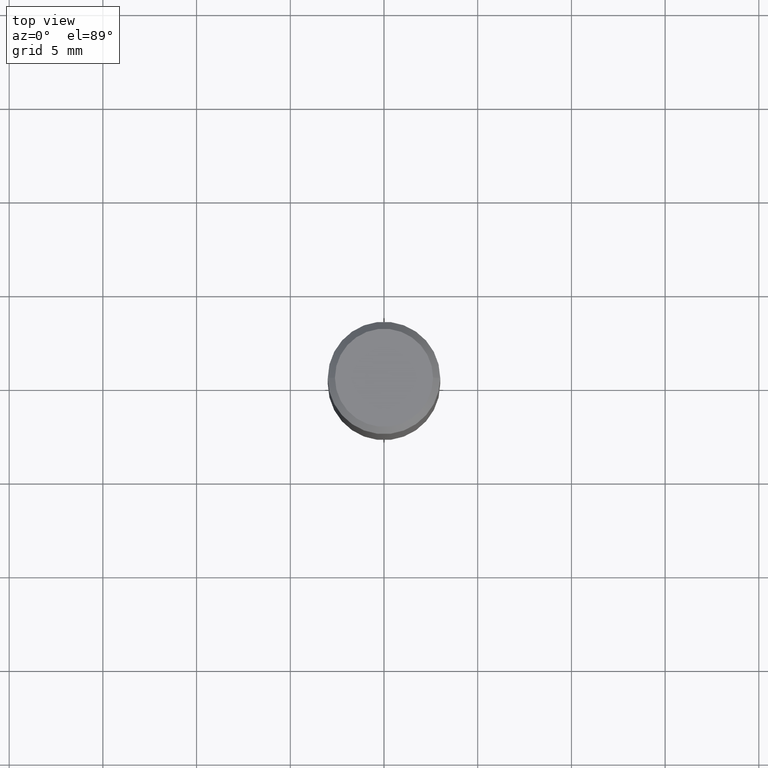
[diagram: clean part render]
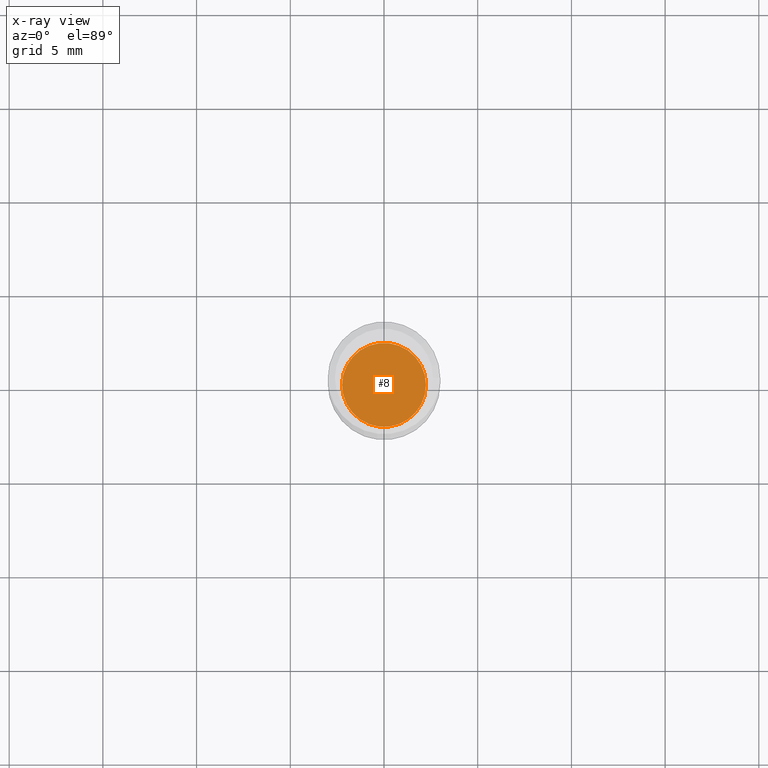
[diagram: x-ray — body ghosted, one internal face saturated and labeled with its STEP entity id]
A machine part, top view, then the same camera in x-ray: the body is ghosted and one INTERNAL B-rep face — a face not visible from any outside direction — is saturated and labeled: STEP entity #8.
In plain terms, the highlighted planar face has unit normal (-0, 0, 1).
Its self-contained STEP definition (entity closure, byte-faithful):
#8 = ADVANCED_FACE ( 'NONE', ( #378 ), #54, .F. ) ;
#33 = AXIS2_PLACEMENT_3D ( 'NONE', #462, #426, #112 ) ;
#37 = EDGE_LOOP ( 'NONE', ( #442, #116 ) ) ;
#49 = CARTESIAN_POINT ( 'NONE',  ( 2.127802408261687534E-29, -3.037937912927420812E-15, -0.8700999999999999845 ) ) ;
#54 = PLANE ( 'NONE',  #436 ) ;
#112 = DIRECTION ( 'NONE',  ( 1.000000000000000000, -6.982962677686264344E-15, 0.000000000000000000 ) ) ;
#115 = DIRECTION ( 'NONE',  ( -2.445468806185136597E-29, 3.491481338843145583E-15, 1.000000000000000000 ) ) ;
#116 = ORIENTED_EDGE ( 'NONE', *, *, #466, .F. ) ;
#143 = VERTEX_POINT ( 'NONE', #239 ) ;
#160 = CIRCLE ( 'NONE', #293, 0.08809999999999999776 ) ;
#224 = CIRCLE ( 'NONE', #33, 0.08809999999999999776 ) ;
#238 = CARTESIAN_POINT ( 'NONE',  ( 2.127802408261687534E-29, -3.037937912927421601E-15, -0.8701000000000000956 ) ) ;
#239 = CARTESIAN_POINT ( 'NONE',  ( 0.08809999999999999776, -3.653136924831581152E-15, -0.8700999999999999845 ) ) ;
#254 = CARTESIAN_POINT ( 'NONE',  ( -0.08809999999999999776, -2.409300535548661264E-15, -0.8700999999999999845 ) ) ;
#293 = AXIS2_PLACEMENT_3D ( 'NONE', #49, #115, #336 ) ;
#332 = DIRECTION ( 'NONE',  ( -2.438088387897960049E-29, 3.491481338843145188E-15, 1.000000000000000000 ) ) ;
#336 = DIRECTION ( 'NONE',  ( 1.000000000000000000, -6.982962677686264344E-15, 0.000000000000000000 ) ) ;
#337 = DIRECTION ( 'NONE',  ( 1.000000000000000000, -6.982962677686265922E-15, 4.876176775795935793E-29 ) ) ;
#378 = FACE_OUTER_BOUND ( 'NONE', #37, .T. ) ;
#403 = VERTEX_POINT ( 'NONE', #254 ) ;
#418 = EDGE_CURVE ( 'NONE', #143, #403, #224, .T. ) ;
#426 = DIRECTION ( 'NONE',  ( -2.445468806185136597E-29, 3.491481338843145583E-15, 1.000000000000000000 ) ) ;
#436 = AXIS2_PLACEMENT_3D ( 'NONE', #238, #332, #337 ) ;
#442 = ORIENTED_EDGE ( 'NONE', *, *, #418, .F. ) ;
#462 = CARTESIAN_POINT ( 'NONE',  ( 2.127802408261687534E-29, -3.037937912927420812E-15, -0.8700999999999999845 ) ) ;
#466 = EDGE_CURVE ( 'NONE', #403, #143, #160, .T. ) ;